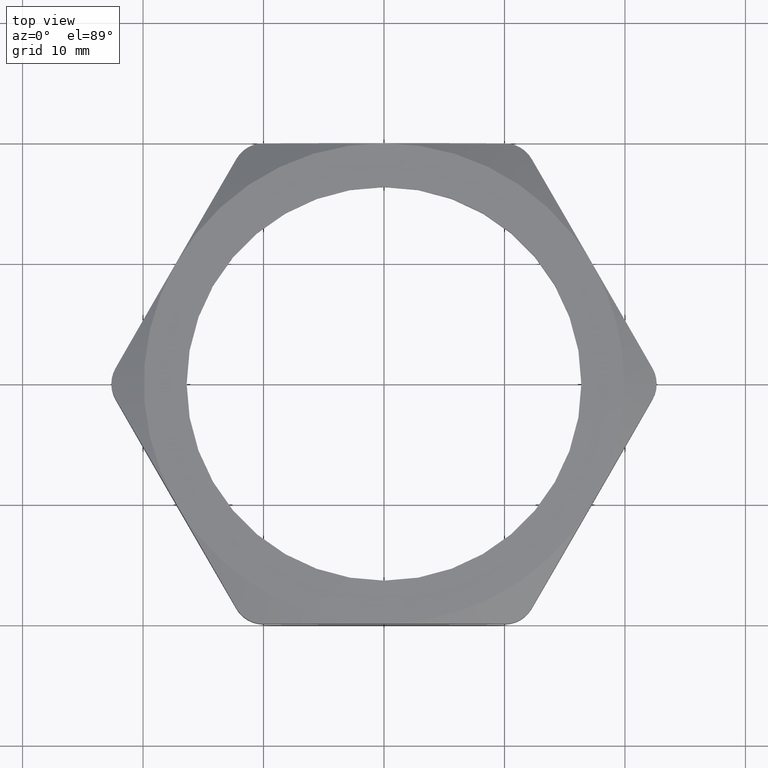
[diagram: clean part render]
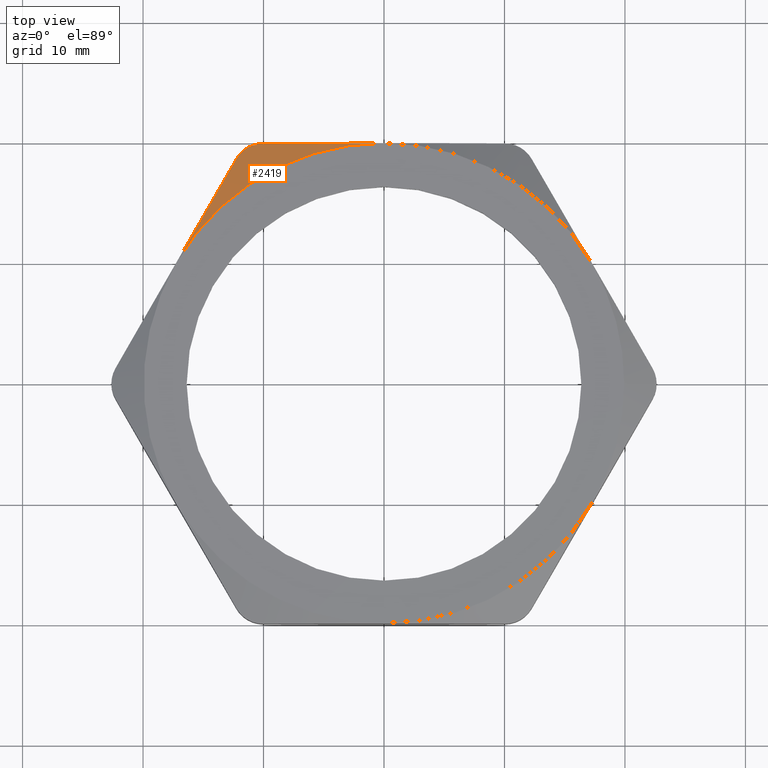
[diagram: same view with one face highlighted and labeled with its STEP entity id]
A machine part, top view. The second image highlights one B-rep face of the part: STEP entity #2419.
In plain terms, the highlighted conical surface has half-angle 60 deg.
Its self-contained STEP definition (entity closure, byte-faithful):
#1101 = DIRECTION ( 'NONE',  ( 1.000000000000000000, 0.0000000000000000000, 0.0000000000000000000 ) ) ;
#1102 = DIRECTION ( 'NONE',  ( 0.0000000000000000000, 0.0000000000000000000, 1.000000000000000000 ) ) ;
#1103 = CARTESIAN_POINT ( 'NONE',  ( 0.0000000000000000000, 0.0000000000000000000, 0.2700000000000000200 ) ) ;
#1104 = AXIS2_PLACEMENT_3D ( 'NONE', #1103, #1102, #1101 ) ;
#1109 = CIRCLE ( 'NONE', #1104, 0.7850000000000002500 ) ;
#1112 = CARTESIAN_POINT ( 'NONE',  ( -0.3954849343948988500, 0.7850000000000002500, 0.2157315925363587400 ) ) ;
#1241 = CARTESIAN_POINT ( 'NONE',  ( 0.0000000000000000000, 0.7850000000000002500, 0.2700000000000000200 ) ) ;
#1243 = B_SPLINE_CURVE_WITH_KNOTS ( 'NONE', 3,
 ( #1241, #1303, #1302, #1301, #1300, #1299, #1298, #1297 ),
 .UNSPECIFIED., .F., .F.,
 ( 4, 2, 2, 4 ),
 ( 0.06576646211690598300, 0.07083825212854769100, 0.07337414713436854500, 0.07591004214018939900 ),
 .UNSPECIFIED. ) ;
#1253 = CARTESIAN_POINT ( 'NONE',  ( 0.0000000000000000000, 0.7850000000000002500, 0.2700000000000000200 ) ) ;
#1297 = CARTESIAN_POINT ( 'NONE',  ( -0.3954849343948988500, 0.7850000000000002500, 0.2157315925363587400 ) ) ;
#1298 = CARTESIAN_POINT ( 'NONE',  ( -0.3630381295239505900, 0.7850000000000002500, 0.2241601748679583600 ) ) ;
#1299 = CARTESIAN_POINT ( 'NONE',  ( -0.3302756248464527900, 0.7850000000000003600, 0.2318382600097122500 ) ) ;
#1300 = CARTESIAN_POINT ( 'NONE',  ( -0.2647336610413537600, 0.7850000000000002500, 0.2452486051113083000 ) ) ;
#1301 = CARTESIAN_POINT ( 'NONE',  ( -0.2318780627751796400, 0.7850000000000001400, 0.2510010299912935900 ) ) ;
#1302 = CARTESIAN_POINT ( 'NONE',  ( -0.1330237424117688100, 0.7849999999999999200, 0.2650208774893572600 ) ) ;
#1303 = CARTESIAN_POINT ( 'NONE',  ( -0.06673297656976985600, 0.7850000000000001400, 0.2699999999999999600 ) ) ;
#1364 = CARTESIAN_POINT ( 'NONE',  ( -0.4040961274384192700, 0.7850000000000001400, 0.2134946958733509300 ) ) ;
#1365 = CARTESIAN_POINT ( 'NONE',  ( -0.3954849343948988500, 0.7850000000000002500, 0.2157315925363587400 ) ) ;
#1368 = B_SPLINE_CURVE_WITH_KNOTS ( 'NONE', 3,
 ( #1365, #1364, #1421, #1420, #1419, #1418, #1417, #1416, #1415, #1414 ),
 .UNSPECIFIED., .F., .F.,
 ( 4, 2, 2, 2, 4 ),
 ( 6.446546135818064400E-017, 0.0006688959770690514000, 0.001337791954138038200, 0.002006687931207025200, 0.002675583908276012200 ),
 .UNSPECIFIED. ) ;
#1414 = CARTESIAN_POINT ( 'NONE',  ( -0.4820874747733375200, 0.7350000000000002100, 0.2157315925363599000 ) ) ;
#1415 = CARTESIAN_POINT ( 'NONE',  ( -0.4777805743641205800, 0.7424597703319040200, 0.2134940184616568600 ) ) ;
#1416 = CARTESIAN_POINT ( 'NONE',  ( -0.4724347527838745300, 0.7494555514475346200, 0.2117493709375949400 ) ) ;
#1417 = CARTESIAN_POINT ( 'NONE',  ( -0.4601386327137382300, 0.7617834093811857200, 0.2094204545831578900 ) ) ;
#1418 = CARTESIAN_POINT ( 'NONE',  ( -0.4530288391522102600, 0.7672556926653649700, 0.2088144380397054200 ) ) ;
#1419 = CARTESIAN_POINT ( 'NONE',  ( -0.4377930780786355400, 0.7760347237520604000, 0.2088221347968197400 ) ) ;
#1420 = CARTESIAN_POINT ( 'NONE',  ( -0.4295748227218104100, 0.7794172821634370900, 0.2094258240087275300 ) ) ;
#1421 = CARTESIAN_POINT ( 'NONE',  ( -0.4126389972107013000, 0.7839064294481562500, 0.2117815809638670900 ) ) ;
#1457 = DIRECTION ( 'NONE',  ( 1.000000000000000000, 0.0000000000000000000, 0.0000000000000000000 ) ) ;
#1458 = DIRECTION ( 'NONE',  ( 0.0000000000000000000, 0.0000000000000000000, -1.000000000000000000 ) ) ;
#1459 = CARTESIAN_POINT ( 'NONE',  ( 0.0000000000000000000, 0.0000000000000000000, 0.2700000000000000200 ) ) ;
#1460 = AXIS2_PLACEMENT_3D ( 'NONE', #1459, #1458, #1457 ) ;
#1462 = CONICAL_SURFACE ( 'NONE', #1460, 0.7850000000000002500, 1.047197551196600100 ) ;
#1465 = FACE_OUTER_BOUND ( 'NONE', #2194, .T. ) ;
#1483 = CARTESIAN_POINT ( 'NONE',  ( -0.6798299419707843900, 0.3925000000000001300, 0.2700000000000000200 ) ) ;
#1490 = CARTESIAN_POINT ( 'NONE',  ( -0.4820874747733375200, 0.7350000000000002100, 0.2157315925363599000 ) ) ;
#1523 = CARTESIAN_POINT ( 'NONE',  ( -0.4820874747733375200, 0.7350000000000002100, 0.2157315925363599000 ) ) ;
#2142 = B_SPLINE_CURVE_WITH_KNOTS ( 'NONE', 3,
 ( #1523, #2320, #2322, #2328, #2329, #2625 ),
 .UNSPECIFIED., .F., .F.,
 ( 4, 2, 4 ),
 ( 0.001509032392850720900, 0.006578656547784209900, 0.01164828070271769900 ),
 .UNSPECIFIED. ) ;
#2194 = EDGE_LOOP ( 'NONE', ( #2381, #2362, #2408, #2447 ) ) ;
#2227 = VERTEX_POINT ( 'NONE', #1112 ) ;
#2230 = EDGE_CURVE ( 'NONE', #2310, #2441, #1109, .T. ) ;
#2310 = VERTEX_POINT ( 'NONE', #1253 ) ;
#2314 = EDGE_CURVE ( 'NONE', #2310, #2227, #1243, .T. ) ;
#2320 = CARTESIAN_POINT ( 'NONE',  ( -0.5144852803405095500, 0.6788853547039199700, 0.2325633004763030300 ) ) ;
#2322 = CARTESIAN_POINT ( 'NONE',  ( -0.5471116115829404200, 0.6223748913274586000, 0.2462131534434781900 ) ) ;
#2328 = CARTESIAN_POINT ( 'NONE',  ( -0.6129790614634338400, 0.5082891215694468300, 0.2649529269773434100 ) ) ;
#2329 = CARTESIAN_POINT ( 'NONE',  ( -0.6462232574774357000, 0.4507084850164171400, 0.2700000000000001300 ) ) ;
#2362 = ORIENTED_EDGE ( 'NONE', *, *, #2380, .T. ) ;
#2380 = EDGE_CURVE ( 'NONE', #2227, #2437, #1368, .T. ) ;
#2381 = ORIENTED_EDGE ( 'NONE', *, *, #2314, .T. ) ;
#2408 = ORIENTED_EDGE ( 'NONE', *, *, #2453, .T. ) ;
#2419 = ADVANCED_FACE ( 'NONE', ( #1465 ), #1462, .T. ) ;
#2437 = VERTEX_POINT ( 'NONE', #1490 ) ;
#2441 = VERTEX_POINT ( 'NONE', #1483 ) ;
#2447 = ORIENTED_EDGE ( 'NONE', *, *, #2230, .F. ) ;
#2453 = EDGE_CURVE ( 'NONE', #2437, #2441, #2142, .T. ) ;
#2625 = CARTESIAN_POINT ( 'NONE',  ( -0.6798299419707843900, 0.3925000000000001300, 0.2700000000000000200 ) ) ;